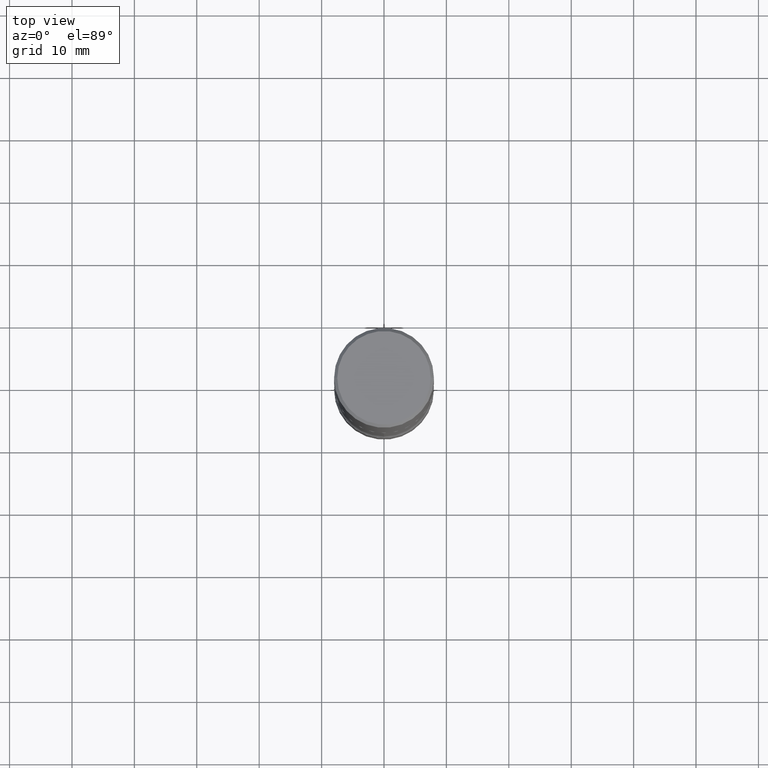
[diagram: clean part render]
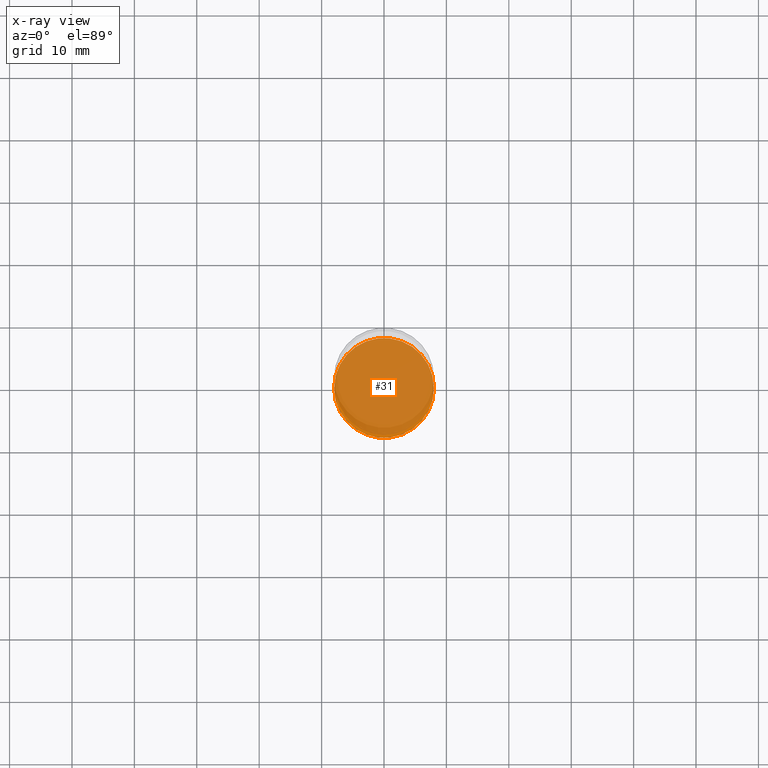
[diagram: x-ray — body ghosted, one internal face saturated and labeled with its STEP entity id]
A machine part, top view, then the same camera in x-ray: the body is ghosted and one INTERNAL B-rep face — a face not visible from any outside direction — is saturated and labeled: STEP entity #31.
In plain terms, the highlighted planar face has unit normal (0, -0, -1).
Its self-contained STEP definition (entity closure, byte-faithful):
#31 = ADVANCED_FACE ( 'NONE', ( #345 ), #127, .F. ) ;
#33 = AXIS2_PLACEMENT_3D ( 'NONE', #509, #428, #126 ) ;
#34 = CARTESIAN_POINT ( 'NONE',  ( 0.3149500000000002298, -1.525812259887842581E-14, -3.740200000000000635 ) ) ;
#42 = DIRECTION ( 'NONE',  ( 1.000000000000000000, -6.982962677686264344E-15, 0.000000000000000000 ) ) ;
#47 = EDGE_CURVE ( 'NONE', #56, #546, #150, .T. ) ;
#56 = VERTEX_POINT ( 'NONE', #163 ) ;
#82 = EDGE_CURVE ( 'NONE', #546, #56, #381, .T. ) ;
#120 = DIRECTION ( 'NONE',  ( -2.445468806185136597E-29, 3.491481338843145583E-15, 1.000000000000000000 ) ) ;
#125 = DIRECTION ( 'NONE',  ( -2.445468806185136597E-29, 3.491481338843145583E-15, 1.000000000000000000 ) ) ;
#126 = DIRECTION ( 'NONE',  ( -1.000000000000000000, 6.982962677686265922E-15, -4.876176775795935793E-29 ) ) ;
#127 = PLANE ( 'NONE',  #33 ) ;
#129 = AXIS2_PLACEMENT_3D ( 'NONE', #470, #125, #42 ) ;
#150 = CIRCLE ( 'NONE', #463, 0.3149500000000002298 ) ;
#156 = EDGE_LOOP ( 'NONE', ( #272, #309 ) ) ;
#163 = CARTESIAN_POINT ( 'NONE',  ( -0.3149500000000002298, -1.185184402255813765E-14, -3.740200000000000635 ) ) ;
#272 = ORIENTED_EDGE ( 'NONE', *, *, #82, .T. ) ;
#298 = DIRECTION ( 'NONE',  ( 1.000000000000000000, -6.982962677686264344E-15, 0.000000000000000000 ) ) ;
#309 = ORIENTED_EDGE ( 'NONE', *, *, #47, .T. ) ;
#345 = FACE_OUTER_BOUND ( 'NONE', #156, .T. ) ;
#381 = CIRCLE ( 'NONE', #129, 0.3149500000000002298 ) ;
#428 = DIRECTION ( 'NONE',  ( 2.438088387897960049E-29, -3.491481338843145188E-15, -1.000000000000000000 ) ) ;
#463 = AXIS2_PLACEMENT_3D ( 'NONE', #464, #120, #298 ) ;
#464 = CARTESIAN_POINT ( 'NONE',  ( 9.146542428893650504E-29, -1.305883850354113594E-14, -3.740200000000000635 ) ) ;
#470 = CARTESIAN_POINT ( 'NONE',  ( 9.146542428893650504E-29, -1.305883850354113594E-14, -3.740200000000000635 ) ) ;
#509 = CARTESIAN_POINT ( 'NONE',  ( 4.615694768568605168E-29, -1.954727023296045315E-14, -3.740200000000000635 ) ) ;
#546 = VERTEX_POINT ( 'NONE', #34 ) ;